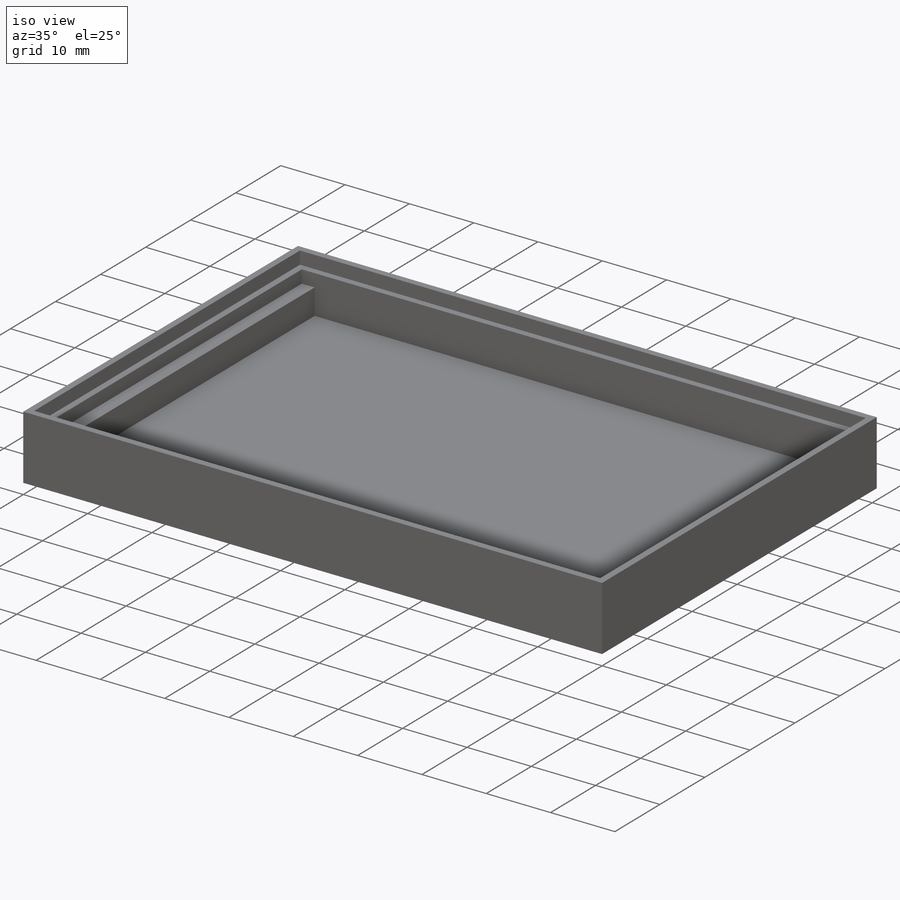
[diagram: iso view]
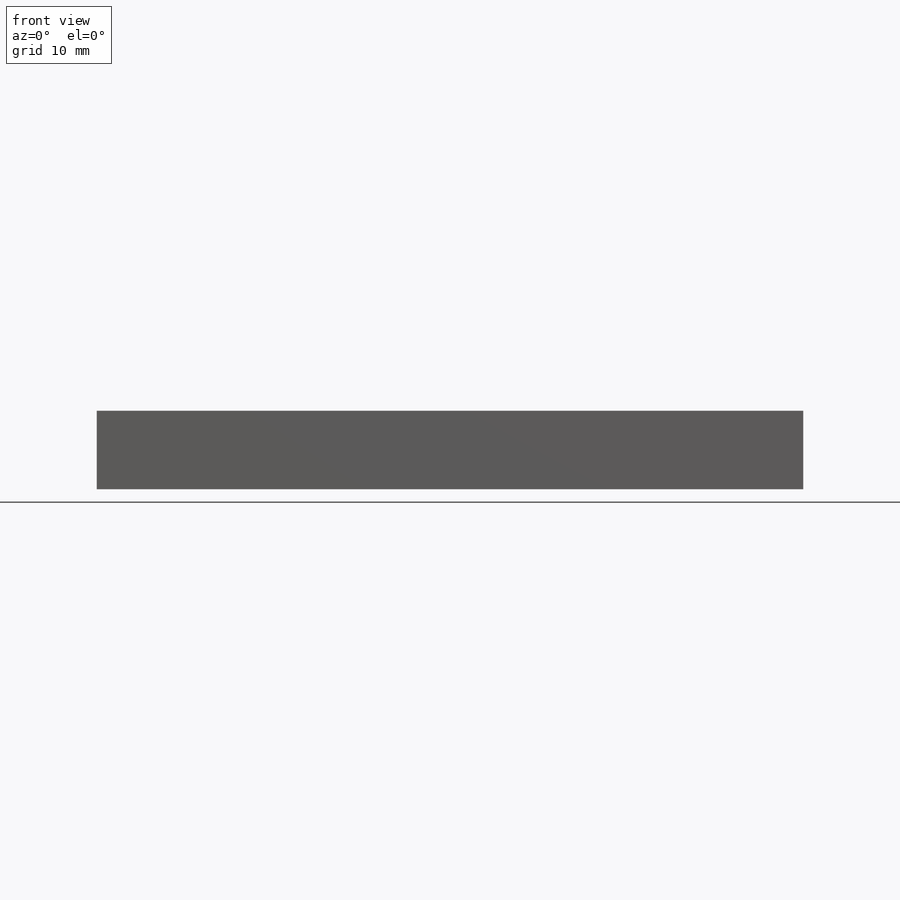
[diagram: front view]
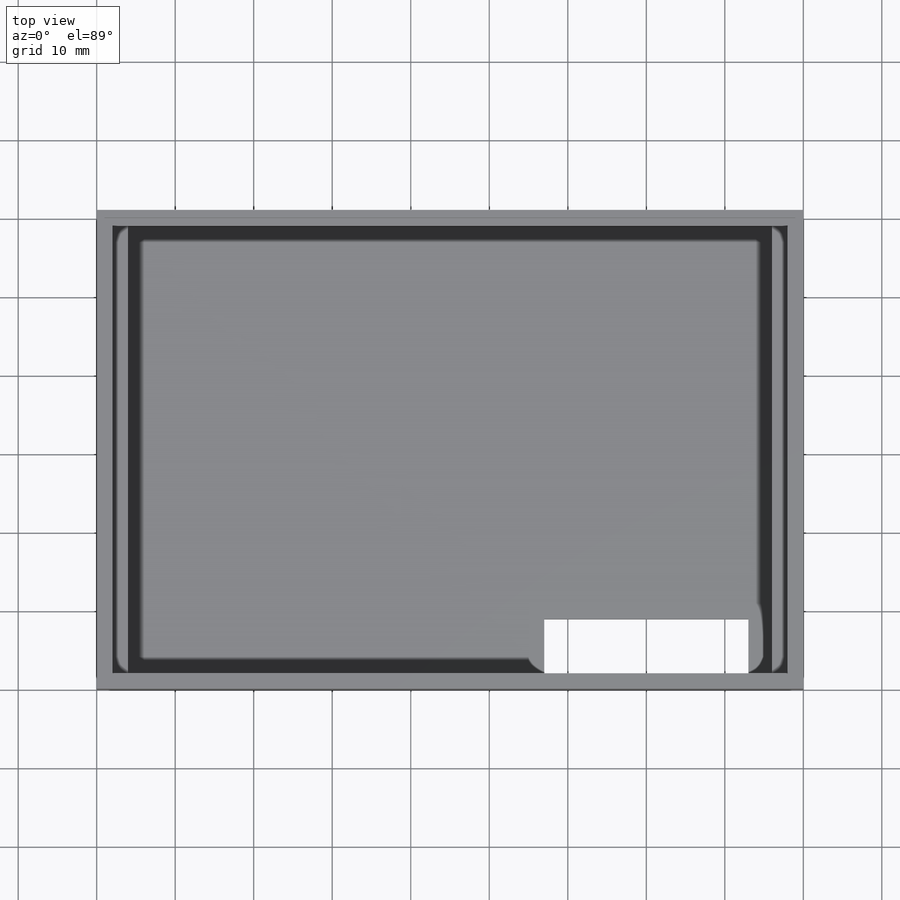
[diagram: top view]
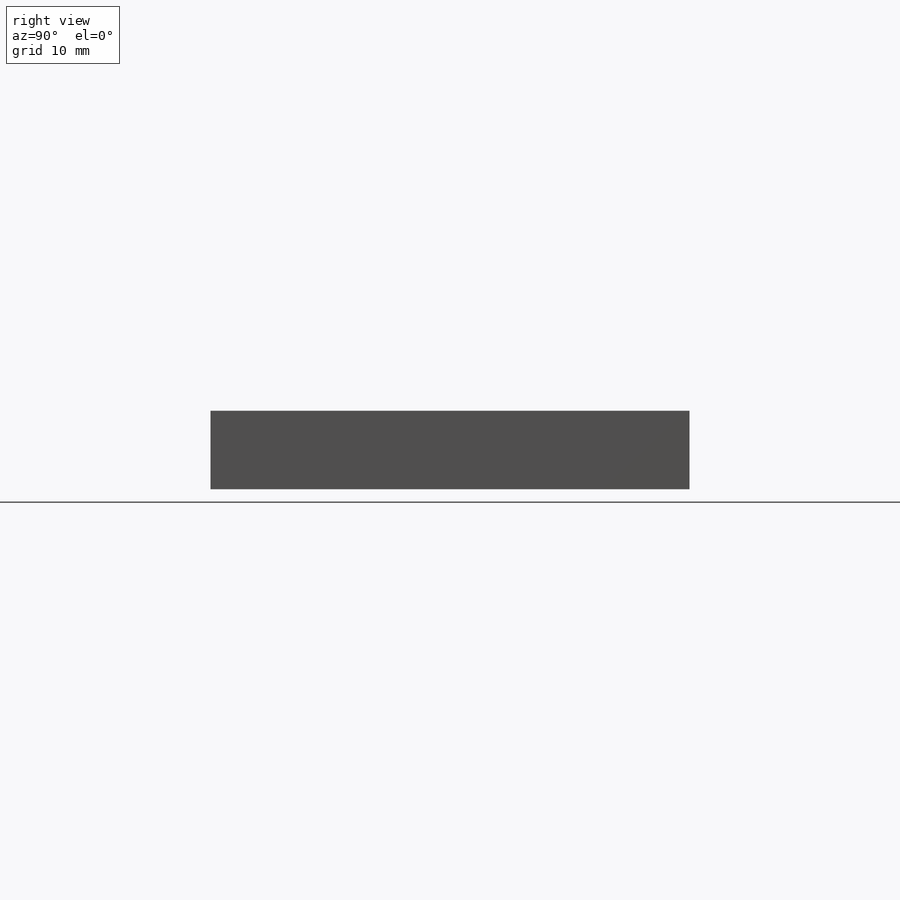
[diagram: right view]
SOLIDWORKS PART (.sldprt)
format: sldprt  version: not decoded by parser v0  size: 184,320 bytes
history: native  units: mm
features: sketch x5, extrude x3, cut_extrude x2, material x1 (+11 scaffold rows collapsed)
feature tree (22):
  scaffold x11  (default folders/planes/origin — collapsed)
  material  "Material <not specified>"
  sketch  "Sketch1"  dims[D1=90.0mm D2=61.0mm]
  extrude  "Boss-Extrude1"  Depth=2mm
  sketch  "Sketch2"  dims[D1=2.0mm]
  extrude  "Boss-Extrude2"  Depth=8mm
  sketch  "Sketch3"  dims[c1.D1=5.0mm c1.D2=28.0mm c1.D3=7.0mm c2.D1=7.0mm c2.D2=5.0mm c2.D3=26.0mm]
  cut_extrude  "Cut-Extrude1"  Depth=2mm
  sketch  "Sketch4"  dims[D1=2.0mm D2=2.0mm]
  extrude  "Boss-Extrude3"  Depth=4mm
  sketch  "Sketch5"  dims[D1=1.0mm]
  cut_extrude  "Cut-Extrude2"  Depth=2mm
decode coverage: 10 of 10 modeling features carry decoded parameters
note: suppression state not decoded; provenance and decode notes live in map.json
